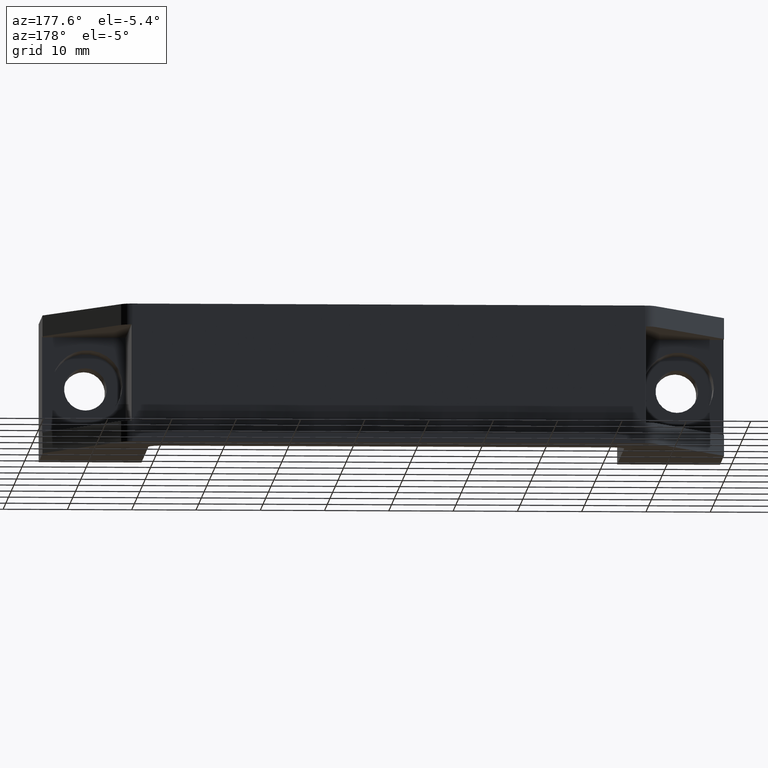
[diagram: clean part render]
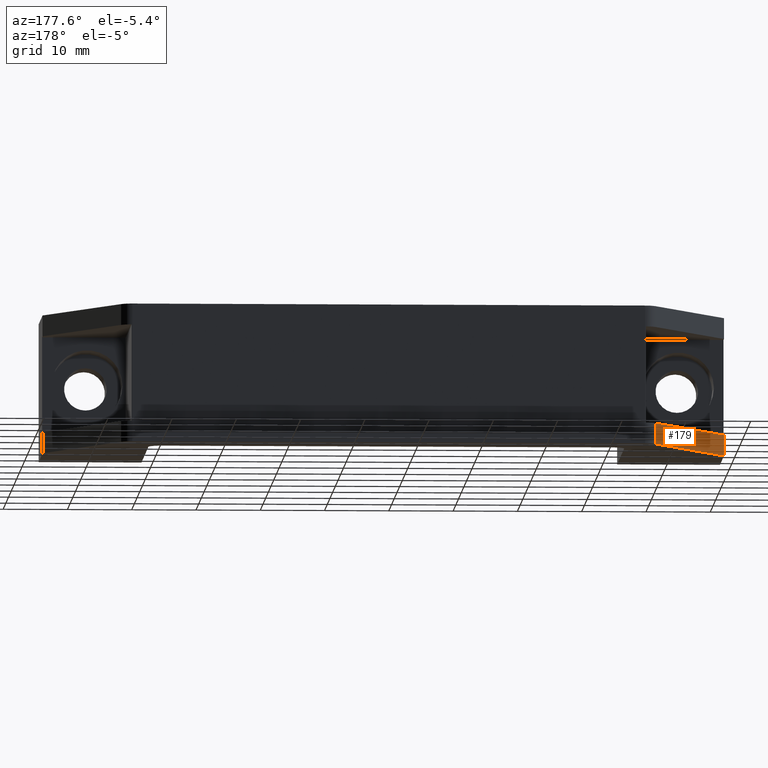
[diagram: same view with one face highlighted and labeled with its STEP entity id]
A machine part, auxiliary view. The second image highlights one B-rep face of the part: STEP entity #179.
In plain terms, the highlighted planar face has unit normal (0.8609, -0.5087, 0).
Its self-contained STEP definition (entity closure, byte-faithful):
#179 = ADVANCED_FACE ( 'NONE', ( #541 ), #481, .F. ) ;
#190 = AXIS2_PLACEMENT_3D ( 'NONE', #480, #478, #477 ) ;
#240 = EDGE_CURVE ( 'NONE', #1184, #1173, #917, .T. ) ;
#311 = EDGE_CURVE ( 'NONE', #1184, #1193, #978, .T. ) ;
#312 = EDGE_CURVE ( 'NONE', #1180, #1193, #982, .T. ) ;
#321 = DIRECTION ( 'NONE',  ( 0.5087293117679251300, 0.8609265284262840300, 0.0000000000000000000 ) ) ;
#325 = CARTESIAN_POINT ( 'NONE',  ( 1.000000000000000900, 14.69230770000000200, -21.50000000000000000 ) ) ;
#329 = DIRECTION ( 'NONE',  ( 0.0000000000000000000, 0.0000000000000000000, -1.000000000000000000 ) ) ;
#333 = CARTESIAN_POINT ( 'NONE',  ( 12.41940736893840500, 34.01745862487442200, -10.75000000000000000 ) ) ;
#377 = DIRECTION ( 'NONE',  ( -0.0000000000000000000, -0.0000000000000000000, 1.000000000000000000 ) ) ;
#378 = CARTESIAN_POINT ( 'NONE',  ( 1.000000000000000000, 14.69230769200000000, -10.75000000000000000 ) ) ;
#394 = DIRECTION ( 'NONE',  ( -0.5087293121296429000, -0.8609265282125416800, -0.0000000000000000000 ) ) ;
#395 = CARTESIAN_POINT ( 'NONE',  ( 6.709703684500000900, 24.35488315800000000, -18.25000000000000000 ) ) ;
#477 = DIRECTION ( 'NONE',  ( 0.5087293121296429000, 0.8609265282125415600, 0.0000000000000000000 ) ) ;
#478 = DIRECTION ( 'NONE',  ( 0.8609265282125416800, -0.5087293121296430100, 0.0000000000000000000 ) ) ;
#480 = CARTESIAN_POINT ( 'NONE',  ( 1.000000000000000000, 14.69230769200000000, -21.50000000000000000 ) ) ;
#481 = PLANE ( 'NONE',  #190 ) ;
#541 = FACE_OUTER_BOUND ( 'NONE', #623, .T. ) ;
#623 = EDGE_LOOP ( 'NONE', ( #793, #792, #791, #788 ) ) ;
#780 = LINE ( 'NONE', #378, #783 ) ;
#783 = VECTOR ( 'NONE', #377, 1000.000000000000000 ) ;
#788 = ORIENTED_EDGE ( 'NONE', *, *, #240, .F. ) ;
#791 = ORIENTED_EDGE ( 'NONE', *, *, #1159, .T. ) ;
#792 = ORIENTED_EDGE ( 'NONE', *, *, #312, .F. ) ;
#793 = ORIENTED_EDGE ( 'NONE', *, *, #311, .T. ) ;
#917 = LINE ( 'NONE', #395, #919 ) ;
#919 = VECTOR ( 'NONE', #394, 1000.000000000000200 ) ;
#978 = LINE ( 'NONE', #333, #979 ) ;
#979 = VECTOR ( 'NONE', #329, 1000.000000000000000 ) ;
#982 = LINE ( 'NONE', #325, #984 ) ;
#984 = VECTOR ( 'NONE', #321, 1000.000000000000000 ) ;
#1020 = CARTESIAN_POINT ( 'NONE',  ( 0.9999999999999991100, 14.69230769568101500, -18.24999999783333500 ) ) ;
#1027 = CARTESIAN_POINT ( 'NONE',  ( 0.9999999999999997800, 14.69230769599999900, -21.50000000000000000 ) ) ;
#1031 = CARTESIAN_POINT ( 'NONE',  ( 12.41940736907813700, 34.01745862437689300, -18.24999999675000200 ) ) ;
#1040 = CARTESIAN_POINT ( 'NONE',  ( 12.41940736294559300, 34.01745862751264600, -21.50000000000000000 ) ) ;
#1159 = EDGE_CURVE ( 'NONE', #1180, #1173, #780, .T. ) ;
#1173 = VERTEX_POINT ( 'NONE', #1020 ) ;
#1180 = VERTEX_POINT ( 'NONE', #1027 ) ;
#1184 = VERTEX_POINT ( 'NONE', #1031 ) ;
#1193 = VERTEX_POINT ( 'NONE', #1040 ) ;